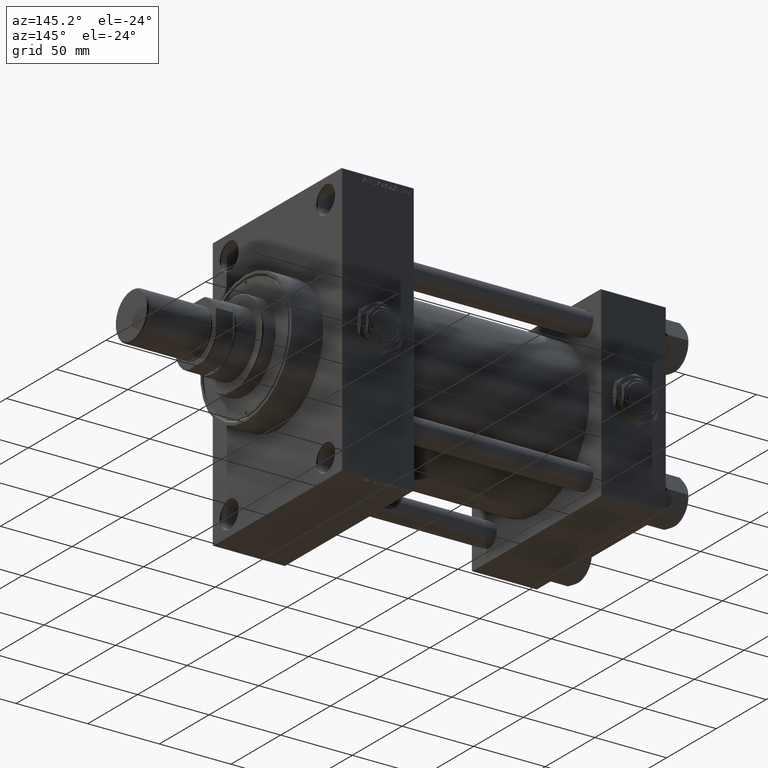
[diagram: clean part render]
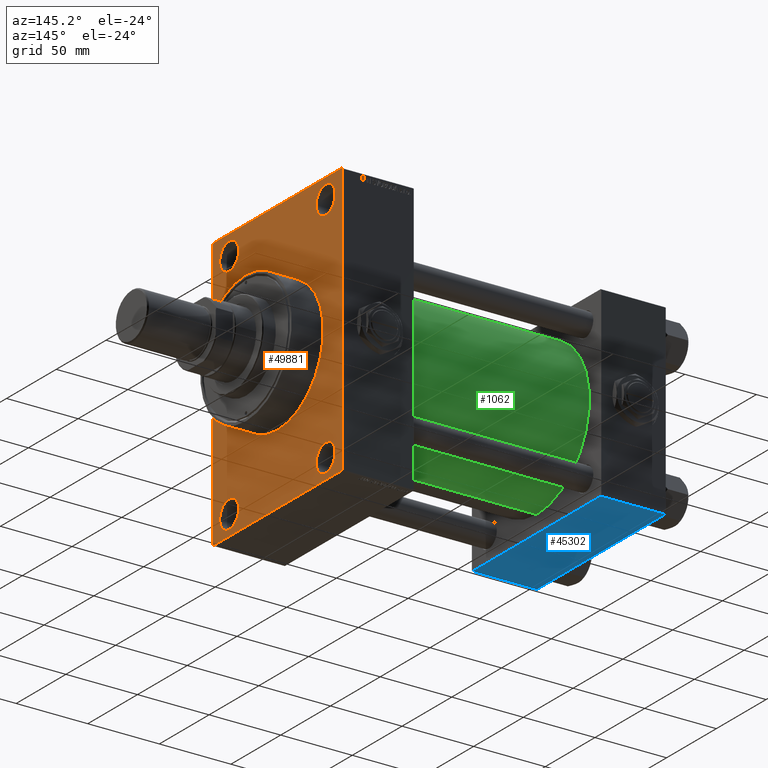
[diagram: same view with three faces highlighted in distinct colors, each labeled with its STEP entity id]
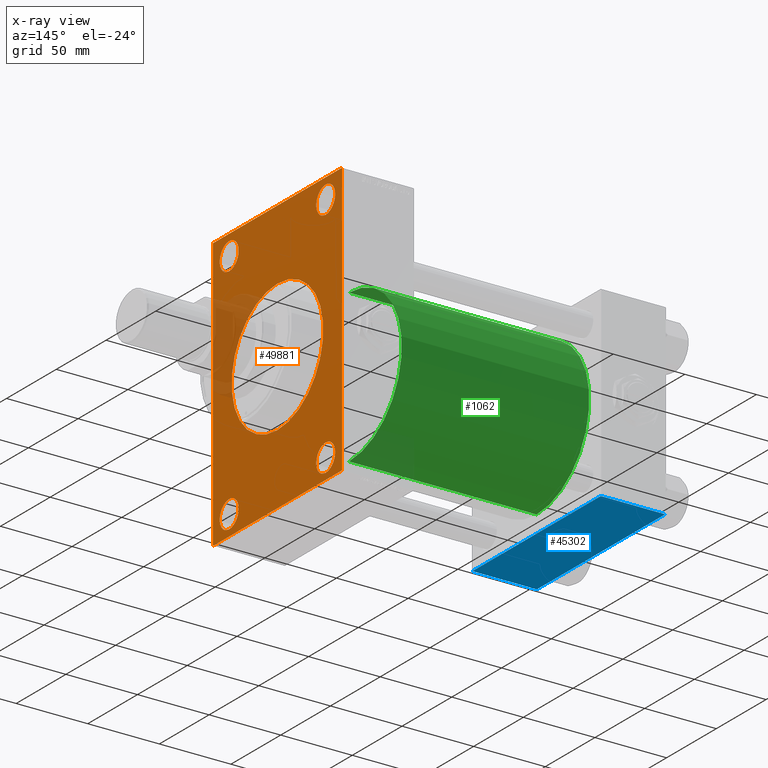
[diagram: x-ray of the same camera — body ghosted, the three highlighted faces saturated]
A machine part, auxiliary view with three faces highlighted in distinct colors.
The next image is the same camera in x-ray (body ghosted, the three faces saturated) — at least one of them is partly hidden behind the body in this view.
Their STEP definitions:

[orange] entity #49881 — the highlighted planar face has unit normal (-1, 0, 0).
#1197 = VERTEX_POINT ( 'NONE', #41794 ) ;
#1220 = CIRCLE ( 'NONE', #26465, 9.499999999999980460 ) ;
#1648 = EDGE_CURVE ( 'NONE', #10370, #35478, #2658, .T. ) ;
#2479 = FACE_BOUND ( 'NONE', #9137, .T. ) ;
#2644 = CARTESIAN_POINT ( 'NONE',  ( 225.9999999999999716, -48.49999999999999289, -71.50000000000004263 ) ) ;
#2658 = LINE ( 'NONE', #29957, #16417 ) ;
#2782 = ORIENTED_EDGE ( 'NONE', *, *, #22158, .T. ) ;
#3830 = DIRECTION ( 'NONE',  ( 0.000000000000000000, 0.000000000000000000, 1.000000000000000000 ) ) ;
#3897 = CARTESIAN_POINT ( 'NONE',  ( 225.9999999999999716, 0.000000000000000000, 0.000000000000000000 ) ) ;
#4349 = VERTEX_POINT ( 'NONE', #28230 ) ;
#4731 = CIRCLE ( 'NONE', #23467, 9.499999999999980460 ) ;
#4880 = CARTESIAN_POINT ( 'NONE',  ( 225.9999999999999716, 0.000000000000000000, 46.00000000000000000 ) ) ;
#5699 = DIRECTION ( 'NONE',  ( 0.000000000000000000, 0.000000000000000000, 1.000000000000000000 ) ) ;
#6327 = ORIENTED_EDGE ( 'NONE', *, *, #22219, .F. ) ;
#6482 = ORIENTED_EDGE ( 'NONE', *, *, #39660, .T. ) ;
#6659 = CARTESIAN_POINT ( 'NONE',  ( 225.9999999999999716, -48.49999999999999289, -81.00000000000001421 ) ) ;
#6850 = AXIS2_PLACEMENT_3D ( 'NONE', #6659, #37755, #38256 ) ;
#6973 = DIRECTION ( 'NONE',  ( -1.000000000000000000, 0.000000000000000000, -0.000000000000000000 ) ) ;
#7558 = CARTESIAN_POINT ( 'NONE',  ( 225.9999999999999716, -65.00000000000001421, 94.50000000000000000 ) ) ;
#7860 = VECTOR ( 'NONE', #38171, 1000.000000000000000 ) ;
#8189 = ORIENTED_EDGE ( 'NONE', *, *, #29611, .T. ) ;
#8359 = VERTEX_POINT ( 'NONE', #25170 ) ;
#8410 = DIRECTION ( 'NONE',  ( 1.000000000000000000, 0.000000000000000000, 0.000000000000000000 ) ) ;
#9059 = LINE ( 'NONE', #20007, #16488 ) ;
#9137 = EDGE_LOOP ( 'NONE', ( #49497, #22646 ) ) ;
#9386 = FACE_BOUND ( 'NONE', #18318, .T. ) ;
#9867 = LINE ( 'NONE', #18004, #14419 ) ;
#9996 = VERTEX_POINT ( 'NONE', #4880 ) ;
#10079 = CARTESIAN_POINT ( 'NONE',  ( 225.9999999999999716, 64.49999999999997158, 94.99999999999997158 ) ) ;
#10370 = VERTEX_POINT ( 'NONE', #38991 ) ;
#10622 = CIRCLE ( 'NONE', #44840, 9.499999999999980460 ) ;
#10890 = LINE ( 'NONE', #45815, #7860 ) ;
#11000 = CARTESIAN_POINT ( 'NONE',  ( 225.9999999999999716, -64.50000000000007105, -95.00000000000002842 ) ) ;
#11129 = AXIS2_PLACEMENT_3D ( 'NONE', #43599, #8410, #47187 ) ;
#11389 = DIRECTION ( 'NONE',  ( -0.000000000000000000, -0.7071067811865573427, -0.7071067811865376918 ) ) ;
#12331 = DIRECTION ( 'NONE',  ( -1.000000000000000000, 0.000000000000000000, -0.000000000000000000 ) ) ;
#12372 = CARTESIAN_POINT ( 'NONE',  ( 225.9999999999999716, 48.50000000000000711, 81.00000000000000000 ) ) ;
#13112 = DIRECTION ( 'NONE',  ( 0.000000000000000000, 0.000000000000000000, 1.000000000000000000 ) ) ;
#13403 = CARTESIAN_POINT ( 'NONE',  ( 225.9999999999999716, -48.49999999999999289, -90.50000000000000000 ) ) ;
#13485 = CIRCLE ( 'NONE', #6850, 9.499999999999980460 ) ;
#13994 = VERTEX_POINT ( 'NONE', #11000 ) ;
#14227 = EDGE_CURVE ( 'NONE', #8359, #34820, #26737, .T. ) ;
#14419 = VECTOR ( 'NONE', #44547, 1000.000000000000000 ) ;
#14596 = CARTESIAN_POINT ( 'NONE',  ( 225.9999999999999716, -64.50000000000002842, 94.99999999999997158 ) ) ;
#14618 = AXIS2_PLACEMENT_3D ( 'NONE', #48407, #32333, #32076 ) ;
#15087 = ORIENTED_EDGE ( 'NONE', *, *, #20666, .T. ) ;
#15121 = DIRECTION ( 'NONE',  ( 0.000000000000000000, 0.000000000000000000, -1.000000000000000000 ) ) ;
#15783 = CARTESIAN_POINT ( 'NONE',  ( 225.9999999999999716, 48.50000000000000711, 90.49999999999998579 ) ) ;
#16022 = VERTEX_POINT ( 'NONE', #27315 ) ;
#16417 = VECTOR ( 'NONE', #29205, 1000.000000000000000 ) ;
#16488 = VECTOR ( 'NONE', #20762, 1000.000000000000114 ) ;
#16655 = DIRECTION ( 'NONE',  ( 0.000000000000000000, 0.000000000000000000, 1.000000000000000000 ) ) ;
#16674 = VERTEX_POINT ( 'NONE', #13403 ) ;
#16803 = ORIENTED_EDGE ( 'NONE', *, *, #35911, .T. ) ;
#16817 = AXIS2_PLACEMENT_3D ( 'NONE', #41900, #6973, #3830 ) ;
#17033 = FACE_BOUND ( 'NONE', #43865, .T. ) ;
#17393 = EDGE_LOOP ( 'NONE', ( #28227, #20822 ) ) ;
#17533 = DIRECTION ( 'NONE',  ( -1.000000000000000000, 0.000000000000000000, -0.000000000000000000 ) ) ;
#17822 = ORIENTED_EDGE ( 'NONE', *, *, #1648, .T. ) ;
#18004 = CARTESIAN_POINT ( 'NONE',  ( 225.9999999999999716, 64.99999999999997158, 94.99999999999997158 ) ) ;
#18233 = CARTESIAN_POINT ( 'NONE',  ( 225.9999999999999716, 5.633375276077824704E-15, -46.00000000000000000 ) ) ;
#18318 = EDGE_LOOP ( 'NONE', ( #8189, #21627 ) ) ;
#18576 = CARTESIAN_POINT ( 'NONE',  ( 225.9999999999999716, 64.49999999999997158, 94.99999999999997158 ) ) ;
#18606 = DIRECTION ( 'NONE',  ( -1.000000000000000000, 0.000000000000000000, -0.000000000000000000 ) ) ;
#19528 = CARTESIAN_POINT ( 'NONE',  ( 225.9999999999999716, 64.99999999999998579, -94.50000000000002842 ) ) ;
#20007 = CARTESIAN_POINT ( 'NONE',  ( 225.9999999999999716, -64.50000000000007105, -95.00000000000002842 ) ) ;
#20024 = CARTESIAN_POINT ( 'NONE',  ( 225.9999999999999716, 64.99999999999997158, 94.99999999999997158 ) ) ;
#20123 = ORIENTED_EDGE ( 'NONE', *, *, #14227, .T. ) ;
#20244 = CARTESIAN_POINT ( 'NONE',  ( 225.9999999999999716, -48.50000000000000000, 81.00000000000000000 ) ) ;
#20279 = DIRECTION ( 'NONE',  ( 0.000000000000000000, 7.304098846218135653E-17, -1.000000000000000000 ) ) ;
#20666 = EDGE_CURVE ( 'NONE', #1197, #13994, #9059, .T. ) ;
#20762 = DIRECTION ( 'NONE',  ( 0.000000000000000000, 0.7071067811865474617, -0.7071067811865474617 ) ) ;
#20822 = ORIENTED_EDGE ( 'NONE', *, *, #36424, .T. ) ;
#21627 = ORIENTED_EDGE ( 'NONE', *, *, #44949, .T. ) ;
#21675 = CARTESIAN_POINT ( 'NONE',  ( 225.9999999999999716, -65.00000000000001421, 94.50000000000000000 ) ) ;
#22073 = CARTESIAN_POINT ( 'NONE',  ( 225.9999999999999716, -48.50000000000000000, 71.50000000000002842 ) ) ;
#22158 = EDGE_CURVE ( 'NONE', #36058, #31300, #49918, .T. ) ;
#22219 = EDGE_CURVE ( 'NONE', #8359, #35478, #44243, .T. ) ;
#22221 = VECTOR ( 'NONE', #20279, 1000.000000000000000 ) ;
#22646 = ORIENTED_EDGE ( 'NONE', *, *, #44616, .F. ) ;
#23004 = DIRECTION ( 'NONE',  ( 1.000000000000000000, 0.000000000000000000, 0.000000000000000000 ) ) ;
#23386 = LINE ( 'NONE', #38939, #42004 ) ;
#23467 = AXIS2_PLACEMENT_3D ( 'NONE', #30341, #18606, #34172 ) ;
#23946 = AXIS2_PLACEMENT_3D ( 'NONE', #20244, #31988, #13112 ) ;
#24066 = VERTEX_POINT ( 'NONE', #15783 ) ;
#24726 = ORIENTED_EDGE ( 'NONE', *, *, #50103, .F. ) ;
#25086 = DIRECTION ( 'NONE',  ( 0.000000000000000000, 0.000000000000000000, -1.000000000000000000 ) ) ;
#25170 = CARTESIAN_POINT ( 'NONE',  ( 225.9999999999999716, 64.99999999999997158, 94.49999999999997158 ) ) ;
#25214 = CIRCLE ( 'NONE', #14618, 9.499999999999980460 ) ;
#25431 = DIRECTION ( 'NONE',  ( -0.000000000000000000, 0.000000000000000000, 1.000000000000000000 ) ) ;
#26465 = AXIS2_PLACEMENT_3D ( 'NONE', #12372, #42980, #30999 ) ;
#26737 = LINE ( 'NONE', #18576, #37887 ) ;
#27125 = ORIENTED_EDGE ( 'NONE', *, *, #30048, .T. ) ;
#27315 = CARTESIAN_POINT ( 'NONE',  ( 225.9999999999999716, 48.50000000000000711, -90.50000000000000000 ) ) ;
#28037 = EDGE_LOOP ( 'NONE', ( #16803, #35707 ) ) ;
#28111 = AXIS2_PLACEMENT_3D ( 'NONE', #3897, #23004, #15121 ) ;
#28227 = ORIENTED_EDGE ( 'NONE', *, *, #47501, .T. ) ;
#28230 = CARTESIAN_POINT ( 'NONE',  ( 225.9999999999999716, 48.50000000000000711, -71.50000000000004263 ) ) ;
#28320 = EDGE_CURVE ( 'NONE', #31300, #1197, #23386, .T. ) ;
#28896 = DIRECTION ( 'NONE',  ( -1.000000000000000000, 0.000000000000000000, -0.000000000000000000 ) ) ;
#29205 = DIRECTION ( 'NONE',  ( -0.000000000000000000, 0.7071067811865573427, 0.7071067811865378028 ) ) ;
#29611 = EDGE_CURVE ( 'NONE', #16674, #42196, #46121, .T. ) ;
#29957 = CARTESIAN_POINT ( 'NONE',  ( 225.9999999999999716, 64.99999999999998579, -94.50000000000002842 ) ) ;
#30048 = EDGE_CURVE ( 'NONE', #34820, #36058, #9867, .T. ) ;
#30341 = CARTESIAN_POINT ( 'NONE',  ( 225.9999999999999716, 48.50000000000000711, 81.00000000000000000 ) ) ;
#30795 = CARTESIAN_POINT ( 'NONE',  ( 225.9999999999999716, 48.50000000000000711, 71.50000000000002842 ) ) ;
#30999 = DIRECTION ( 'NONE',  ( 0.000000000000000000, 0.000000000000000000, 1.000000000000000000 ) ) ;
#31300 = VERTEX_POINT ( 'NONE', #21675 ) ;
#31988 = DIRECTION ( 'NONE',  ( -1.000000000000000000, 0.000000000000000000, -0.000000000000000000 ) ) ;
#32076 = DIRECTION ( 'NONE',  ( 0.000000000000000000, 0.000000000000000000, 1.000000000000000000 ) ) ;
#32215 = CARTESIAN_POINT ( 'NONE',  ( 225.9999999999999716, 48.50000000000000711, -81.00000000000001421 ) ) ;
#32333 = DIRECTION ( 'NONE',  ( -1.000000000000000000, 0.000000000000000000, -0.000000000000000000 ) ) ;
#33506 = EDGE_CURVE ( 'NONE', #9996, #42623, #49455, .T. ) ;
#33593 = FACE_BOUND ( 'NONE', #17393, .T. ) ;
#33903 = VERTEX_POINT ( 'NONE', #39279 ) ;
#34144 = DIRECTION ( 'NONE',  ( 0.000000000000000000, -0.7071067811865474617, 0.7071067811865474617 ) ) ;
#34172 = DIRECTION ( 'NONE',  ( 0.000000000000000000, 0.000000000000000000, 1.000000000000000000 ) ) ;
#34820 = VERTEX_POINT ( 'NONE', #10079 ) ;
#34855 = ORIENTED_EDGE ( 'NONE', *, *, #41253, .T. ) ;
#35478 = VERTEX_POINT ( 'NONE', #19528 ) ;
#35707 = ORIENTED_EDGE ( 'NONE', *, *, #45579, .T. ) ;
#35911 = EDGE_CURVE ( 'NONE', #46381, #33903, #42982, .T. ) ;
#36058 = VERTEX_POINT ( 'NONE', #14596 ) ;
#36424 = EDGE_CURVE ( 'NONE', #24066, #43129, #4731, .T. ) ;
#36502 = ORIENTED_EDGE ( 'NONE', *, *, #28320, .T. ) ;
#36649 = PLANE ( 'NONE',  #50213 ) ;
#37755 = DIRECTION ( 'NONE',  ( -1.000000000000000000, 0.000000000000000000, -0.000000000000000000 ) ) ;
#37887 = VECTOR ( 'NONE', #34144, 1000.000000000000114 ) ;
#38171 = DIRECTION ( 'NONE',  ( 0.000000000000000000, -1.000000000000000000, -1.067522139062650425E-16 ) ) ;
#38256 = DIRECTION ( 'NONE',  ( 0.000000000000000000, 0.000000000000000000, 1.000000000000000000 ) ) ;
#38837 = EDGE_LOOP ( 'NONE', ( #36502, #15087, #24726, #17822, #6327, #20123, #27125, #2782 ) ) ;
#38939 = CARTESIAN_POINT ( 'NONE',  ( 225.9999999999999716, -65.00000000000001421, 94.99999999999997158 ) ) ;
#38991 = CARTESIAN_POINT ( 'NONE',  ( 225.9999999999999716, 64.49999999999998579, -95.00000000000001421 ) ) ;
#39279 = CARTESIAN_POINT ( 'NONE',  ( 225.9999999999999716, -48.50000000000000000, 90.49999999999998579 ) ) ;
#39660 = EDGE_CURVE ( 'NONE', #4349, #16022, #25214, .T. ) ;
#41253 = EDGE_CURVE ( 'NONE', #16022, #4349, #10622, .T. ) ;
#41783 = VECTOR ( 'NONE', #11389, 1000.000000000000114 ) ;
#41794 = CARTESIAN_POINT ( 'NONE',  ( 225.9999999999999716, -65.00000000000001421, -94.50000000000008527 ) ) ;
#41900 = CARTESIAN_POINT ( 'NONE',  ( 225.9999999999999716, -48.49999999999999289, -81.00000000000001421 ) ) ;
#42004 = VECTOR ( 'NONE', #25086, 1000.000000000000000 ) ;
#42144 = AXIS2_PLACEMENT_3D ( 'NONE', #44187, #28896, #5699 ) ;
#42196 = VERTEX_POINT ( 'NONE', #2644 ) ;
#42623 = VERTEX_POINT ( 'NONE', #18233 ) ;
#42980 = DIRECTION ( 'NONE',  ( -1.000000000000000000, 0.000000000000000000, -0.000000000000000000 ) ) ;
#42982 = CIRCLE ( 'NONE', #42144, 9.499999999999980460 ) ;
#43129 = VERTEX_POINT ( 'NONE', #30795 ) ;
#43584 = CIRCLE ( 'NONE', #28111, 46.00000000000000000 ) ;
#43599 = CARTESIAN_POINT ( 'NONE',  ( 225.9999999999999716, 0.000000000000000000, 0.000000000000000000 ) ) ;
#43865 = EDGE_LOOP ( 'NONE', ( #34855, #6482 ) ) ;
#44187 = CARTESIAN_POINT ( 'NONE',  ( 225.9999999999999716, -48.50000000000000000, 81.00000000000000000 ) ) ;
#44243 = LINE ( 'NONE', #20024, #22221 ) ;
#44312 = FACE_BOUND ( 'NONE', #28037, .T. ) ;
#44547 = DIRECTION ( 'NONE',  ( 0.000000000000000000, -1.000000000000000000, 0.000000000000000000 ) ) ;
#44616 = EDGE_CURVE ( 'NONE', #42623, #9996, #43584, .T. ) ;
#44840 = AXIS2_PLACEMENT_3D ( 'NONE', #32215, #12331, #16655 ) ;
#44949 = EDGE_CURVE ( 'NONE', #42196, #16674, #13485, .T. ) ;
#45078 = FACE_OUTER_BOUND ( 'NONE', #38837, .T. ) ;
#45335 = CARTESIAN_POINT ( 'NONE',  ( 225.9999999999999716, 0.000000000000000000, 0.000000000000000000 ) ) ;
#45579 = EDGE_CURVE ( 'NONE', #33903, #46381, #45938, .T. ) ;
#45815 = CARTESIAN_POINT ( 'NONE',  ( 225.9999999999999716, 64.99999999999998579, -95.00000000000001421 ) ) ;
#45938 = CIRCLE ( 'NONE', #23946, 9.499999999999980460 ) ;
#46121 = CIRCLE ( 'NONE', #16817, 9.499999999999980460 ) ;
#46381 = VERTEX_POINT ( 'NONE', #22073 ) ;
#47187 = DIRECTION ( 'NONE',  ( 0.000000000000000000, 0.000000000000000000, -1.000000000000000000 ) ) ;
#47501 = EDGE_CURVE ( 'NONE', #43129, #24066, #1220, .T. ) ;
#48407 = CARTESIAN_POINT ( 'NONE',  ( 225.9999999999999716, 48.50000000000000711, -81.00000000000001421 ) ) ;
#49455 = CIRCLE ( 'NONE', #11129, 46.00000000000000000 ) ;
#49497 = ORIENTED_EDGE ( 'NONE', *, *, #33506, .F. ) ;
#49881 = ADVANCED_FACE ( 'NONE', ( #44312, #9386, #17033, #33593, #2479, #45078 ), #36649, .F. ) ;
#49918 = LINE ( 'NONE', #7558, #41783 ) ;
#50103 = EDGE_CURVE ( 'NONE', #10370, #13994, #10890, .T. ) ;
#50213 = AXIS2_PLACEMENT_3D ( 'NONE', #45335, #17533, #25431 ) ;

[blue] entity #45302 — the highlighted planar face has unit normal (0, 0, -1).
#1200 = LINE ( 'NONE', #9380, #11898 ) ;
#1521 = CARTESIAN_POINT ( 'NONE',  ( 0.000000000000000000, 64.49999999999997158, -64.99999999999998579 ) ) ;
#1954 = VERTEX_POINT ( 'NONE', #1521 ) ;
#4533 = ORIENTED_EDGE ( 'NONE', *, *, #14310, .T. ) ;
#8092 = DIRECTION ( 'NONE',  ( 0.000000000000000000, 1.000000000000000000, 1.067522139062650548E-16 ) ) ;
#9288 = AXIS2_PLACEMENT_3D ( 'NONE', #27208, #34873, #8092 ) ;
#9380 = CARTESIAN_POINT ( 'NONE',  ( 45.00000000000000000, 64.49999999999997158, -64.99999999999998579 ) ) ;
#9639 = LINE ( 'NONE', #33087, #21644 ) ;
#9883 = DIRECTION ( 'NONE',  ( 0.000000000000000000, -1.000000000000000000, -1.067522139062650425E-16 ) ) ;
#10099 = EDGE_LOOP ( 'NONE', ( #30829, #18561, #4533, #28213 ) ) ;
#11658 = PLANE ( 'NONE',  #9288 ) ;
#11898 = VECTOR ( 'NONE', #16772, 1000.000000000000000 ) ;
#14310 = EDGE_CURVE ( 'NONE', #33185, #28570, #24417, .T. ) ;
#15083 = EDGE_CURVE ( 'NONE', #1954, #33185, #1200, .T. ) ;
#15250 = EDGE_CURVE ( 'NONE', #1954, #25975, #9639, .T. ) ;
#16263 = DIRECTION ( 'NONE',  ( 0.000000000000000000, -1.000000000000000000, -1.067522139062650425E-16 ) ) ;
#16772 = DIRECTION ( 'NONE',  ( 1.000000000000000000, 0.000000000000000000, 0.000000000000000000 ) ) ;
#18561 = ORIENTED_EDGE ( 'NONE', *, *, #15083, .T. ) ;
#19471 = CARTESIAN_POINT ( 'NONE',  ( 0.000000000000000000, -64.49999999999994316, -65.00000000000000000 ) ) ;
#19543 = FACE_OUTER_BOUND ( 'NONE', #10099, .T. ) ;
#21644 = VECTOR ( 'NONE', #9883, 1000.000000000000000 ) ;
#24319 = CARTESIAN_POINT ( 'NONE',  ( 0.000000000000000000, -64.49999999999994316, -65.00000000000000000 ) ) ;
#24417 = LINE ( 'NONE', #32329, #44408 ) ;
#24769 = EDGE_CURVE ( 'NONE', #28570, #25975, #44776, .T. ) ;
#25975 = VERTEX_POINT ( 'NONE', #24319 ) ;
#27208 = CARTESIAN_POINT ( 'NONE',  ( 45.00000000000000000, 65.00000000000000000, -64.99999999999998579 ) ) ;
#27595 = CARTESIAN_POINT ( 'NONE',  ( 45.00000000000000000, -64.49999999999994316, -65.00000000000000000 ) ) ;
#28213 = ORIENTED_EDGE ( 'NONE', *, *, #24769, .T. ) ;
#28570 = VERTEX_POINT ( 'NONE', #27595 ) ;
#28600 = CARTESIAN_POINT ( 'NONE',  ( 45.00000000000000000, 64.49999999999997158, -64.99999999999998579 ) ) ;
#30829 = ORIENTED_EDGE ( 'NONE', *, *, #15250, .F. ) ;
#32329 = CARTESIAN_POINT ( 'NONE',  ( 45.00000000000000000, 65.00000000000000000, -64.99999999999998579 ) ) ;
#33087 = CARTESIAN_POINT ( 'NONE',  ( 0.000000000000000000, 65.00000000000000000, -64.99999999999998579 ) ) ;
#33185 = VERTEX_POINT ( 'NONE', #28600 ) ;
#34873 = DIRECTION ( 'NONE',  ( 0.000000000000000000, 1.067522139062650548E-16, -1.000000000000000000 ) ) ;
#40252 = VECTOR ( 'NONE', #43202, 1000.000000000000000 ) ;
#43202 = DIRECTION ( 'NONE',  ( -1.000000000000000000, 0.000000000000000000, 0.000000000000000000 ) ) ;
#44408 = VECTOR ( 'NONE', #16263, 1000.000000000000000 ) ;
#44776 = LINE ( 'NONE', #19471, #40252 ) ;
#45302 = ADVANCED_FACE ( 'NONE', ( #19543 ), #11658, .T. ) ;

[green] entity #1062 — the highlighted cylindrical surface (partial cylindrical patch) has radius 53 mm, axis along (-1, -0, -0).
#477 = ORIENTED_EDGE ( 'NONE', *, *, #8254, .T. ) ;
#1062 = ADVANCED_FACE ( 'NONE', ( #39792 ), #1757, .T. ) ;
#1757 = CYLINDRICAL_SURFACE ( 'NONE', #48189, 53.00000000000000711 ) ;
#3752 = CARTESIAN_POINT ( 'NONE',  ( 176.0000000000000000, -2.602085213965210642E-15, 0.000000000000000000 ) ) ;
#5388 = VERTEX_POINT ( 'NONE', #26662 ) ;
#8254 = EDGE_CURVE ( 'NONE', #5388, #14144, #29002, .T. ) ;
#8891 = DIRECTION ( 'NONE',  ( 1.000000000000000000, -0.000000000000000000, 0.000000000000000000 ) ) ;
#8901 = CARTESIAN_POINT ( 'NONE',  ( 176.0000000000000000, -2.602085213965210642E-15, 53.00000000000000711 ) ) ;
#10681 = CARTESIAN_POINT ( 'NONE',  ( 44.99999999999998579, 3.888542821515762466E-15, -53.00000000000000711 ) ) ;
#11155 = DIRECTION ( 'NONE',  ( 1.000000000000000000, 0.000000000000000000, 0.000000000000000000 ) ) ;
#11902 = CIRCLE ( 'NONE', #20842, 53.00000000000000711 ) ;
#14144 = VERTEX_POINT ( 'NONE', #10681 ) ;
#16276 = CARTESIAN_POINT ( 'NONE',  ( 44.99999999999998579, -2.602085213965210642E-15, 0.000000000000000000 ) ) ;
#17331 = CARTESIAN_POINT ( 'NONE',  ( 176.0000000000000000, -2.602085213965210642E-15, 0.000000000000000000 ) ) ;
#20842 = AXIS2_PLACEMENT_3D ( 'NONE', #16276, #8891, #24432 ) ;
#21353 = LINE ( 'NONE', #8901, #24778 ) ;
#23721 = DIRECTION ( 'NONE',  ( -1.000000000000000000, -0.000000000000000000, -0.000000000000000000 ) ) ;
#24124 = EDGE_CURVE ( 'NONE', #24183, #38944, #21353, .T. ) ;
#24183 = VERTEX_POINT ( 'NONE', #43829 ) ;
#24432 = DIRECTION ( 'NONE',  ( 0.000000000000000000, 0.000000000000000000, 1.000000000000000000 ) ) ;
#24778 = VECTOR ( 'NONE', #36410, 1000.000000000000000 ) ;
#26653 = ORIENTED_EDGE ( 'NONE', *, *, #49765, .T. ) ;
#26662 = CARTESIAN_POINT ( 'NONE',  ( 176.0000000000000000, 3.888542821515762466E-15, -53.00000000000000711 ) ) ;
#29002 = LINE ( 'NONE', #36882, #32034 ) ;
#29073 = DIRECTION ( 'NONE',  ( 0.000000000000000000, 0.000000000000000000, 1.000000000000000000 ) ) ;
#32034 = VECTOR ( 'NONE', #23721, 1000.000000000000000 ) ;
#32893 = DIRECTION ( 'NONE',  ( -1.000000000000000000, -0.000000000000000000, -0.000000000000000000 ) ) ;
#35749 = CARTESIAN_POINT ( 'NONE',  ( 44.99999999999998579, -2.602085213965210642E-15, 53.00000000000000711 ) ) ;
#36410 = DIRECTION ( 'NONE',  ( -1.000000000000000000, -0.000000000000000000, -0.000000000000000000 ) ) ;
#36882 = CARTESIAN_POINT ( 'NONE',  ( 176.0000000000000000, 3.888542821515762466E-15, -53.00000000000000711 ) ) ;
#38944 = VERTEX_POINT ( 'NONE', #35749 ) ;
#39792 = FACE_OUTER_BOUND ( 'NONE', #43305, .T. ) ;
#40033 = ORIENTED_EDGE ( 'NONE', *, *, #43145, .F. ) ;
#41632 = CIRCLE ( 'NONE', #45699, 53.00000000000000711 ) ;
#42159 = ORIENTED_EDGE ( 'NONE', *, *, #24124, .F. ) ;
#43145 = EDGE_CURVE ( 'NONE', #5388, #24183, #41632, .T. ) ;
#43305 = EDGE_LOOP ( 'NONE', ( #40033, #477, #26653, #42159 ) ) ;
#43829 = CARTESIAN_POINT ( 'NONE',  ( 176.0000000000000000, -2.602085213965210642E-15, 53.00000000000000711 ) ) ;
#45699 = AXIS2_PLACEMENT_3D ( 'NONE', #3752, #11155, #49938 ) ;
#48189 = AXIS2_PLACEMENT_3D ( 'NONE', #17331, #32893, #29073 ) ;
#49765 = EDGE_CURVE ( 'NONE', #14144, #38944, #11902, .T. ) ;
#49938 = DIRECTION ( 'NONE',  ( 0.000000000000000000, 0.000000000000000000, -1.000000000000000000 ) ) ;